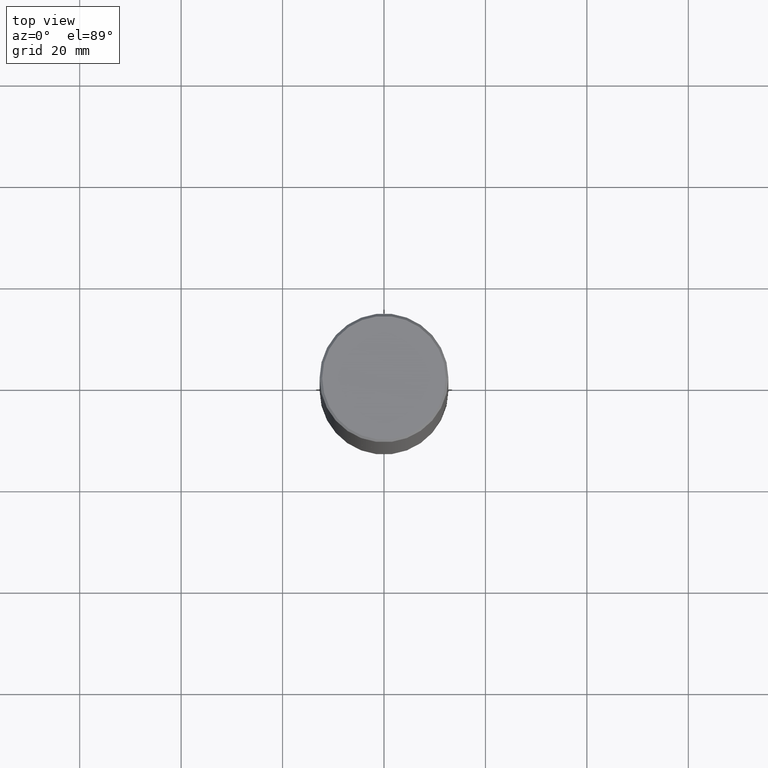
[diagram: clean part render]
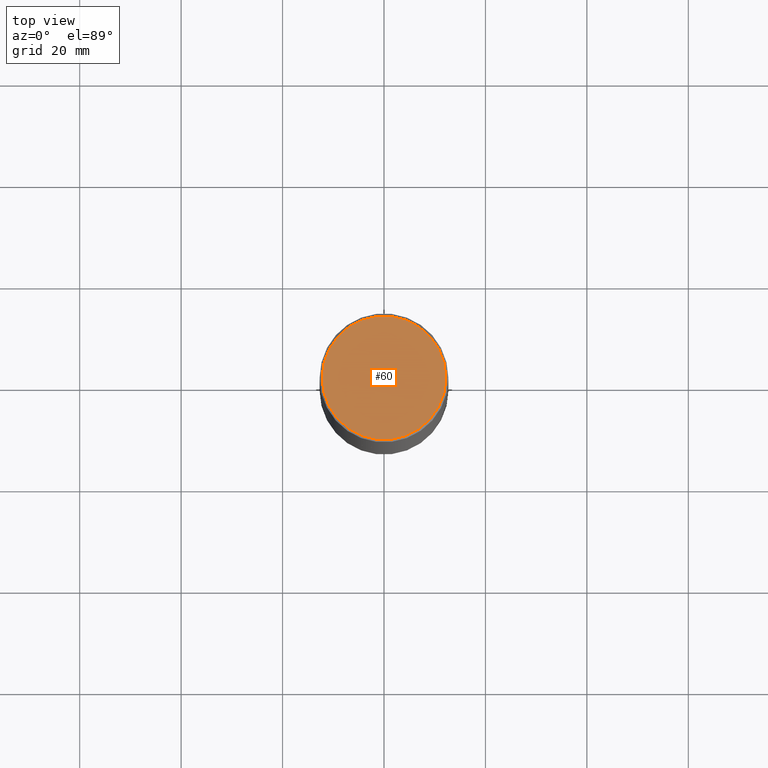
[diagram: same view with one face highlighted and labeled with its STEP entity id]
A machine part, top view. The second image highlights one B-rep face of the part: STEP entity #60.
In plain terms, the highlighted planar face has unit normal (0, -0, -1).
Its self-contained STEP definition (entity closure, byte-faithful):
#25 = VERTEX_POINT ( 'NONE', #78 ) ;
#37 = EDGE_CURVE ( 'NONE', #52, #25, #268, .T. ) ;
#52 = VERTEX_POINT ( 'NONE', #176 ) ;
#60 = ADVANCED_FACE ( 'NONE', ( #300 ), #305, .F. ) ;
#73 = AXIS2_PLACEMENT_3D ( 'NONE', #131, #258, #158 ) ;
#78 = CARTESIAN_POINT ( 'NONE',  ( 0.4799999999999995937, -3.396558832296480127E-15, 1.280553747032483033E-17 ) ) ;
#86 = AXIS2_PLACEMENT_3D ( 'NONE', #253, #323, #128 ) ;
#87 = AXIS2_PLACEMENT_3D ( 'NONE', #192, #333, #166 ) ;
#104 = CIRCLE ( 'NONE', #87, 0.4799999999999995937 ) ;
#123 = EDGE_CURVE ( 'NONE', #25, #52, #104, .T. ) ;
#128 = DIRECTION ( 'NONE',  ( -1.000000000000000000, 6.982962677686265922E-15, -4.876176775795935793E-29 ) ) ;
#131 = CARTESIAN_POINT ( 'NONE',  ( -3.131554243005659264E-46, 4.471029511141341874E-32, 1.280553747030123384E-17 ) ) ;
#154 = ORIENTED_EDGE ( 'NONE', *, *, #123, .T. ) ;
#158 = DIRECTION ( 'NONE',  ( 1.000000000000000000, -6.982962677686266711E-15, 4.876036955247133327E-29 ) ) ;
#161 = ORIENTED_EDGE ( 'NONE', *, *, #37, .T. ) ;
#166 = DIRECTION ( 'NONE',  ( 1.000000000000000000, -6.982962677686266711E-15, 4.876036955247133327E-29 ) ) ;
#176 = CARTESIAN_POINT ( 'NONE',  ( -0.4799999999999995937, 3.386736898677836436E-15, 1.280553747027767124E-17 ) ) ;
#192 = CARTESIAN_POINT ( 'NONE',  ( -3.131554243005659264E-46, 4.471029511141341874E-32, 1.280553747030123384E-17 ) ) ;
#253 = CARTESIAN_POINT ( 'NONE',  ( 3.351822085289404787E-15, 0.4799999999999995937, -1.669508273909557867E-15 ) ) ;
#258 = DIRECTION ( 'NONE',  ( -2.445468806185136597E-29, 3.491481338843145583E-15, 1.000000000000000000 ) ) ;
#268 = CIRCLE ( 'NONE', #73, 0.4799999999999995937 ) ;
#286 = EDGE_LOOP ( 'NONE', ( #161, #154 ) ) ;
#300 = FACE_OUTER_BOUND ( 'NONE', #286, .T. ) ;
#305 = PLANE ( 'NONE',  #86 ) ;
#323 = DIRECTION ( 'NONE',  ( 2.438088387897960049E-29, -3.491481338843145188E-15, -1.000000000000000000 ) ) ;
#333 = DIRECTION ( 'NONE',  ( -2.445468806185136597E-29, 3.491481338843145583E-15, 1.000000000000000000 ) ) ;